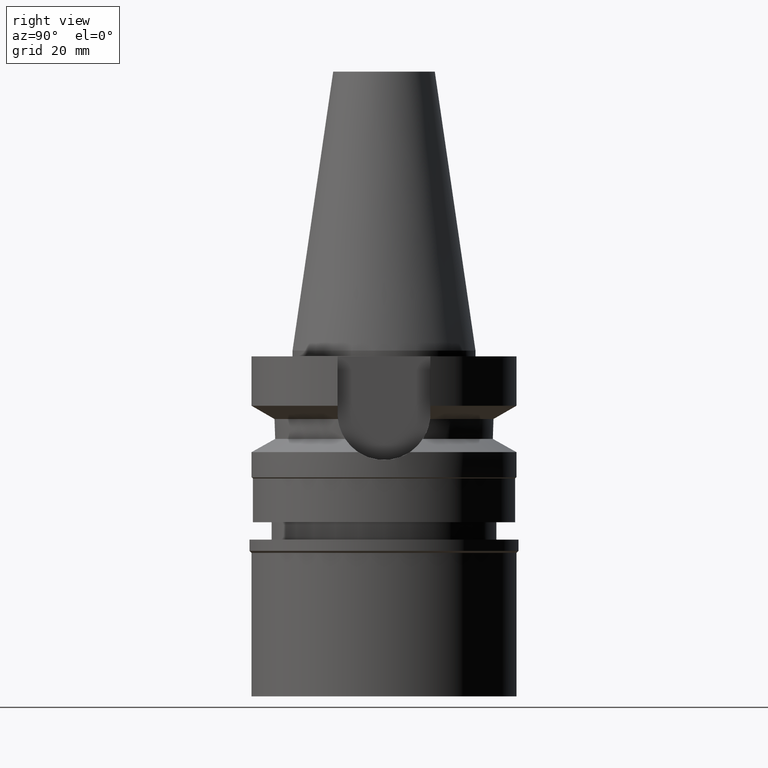
[diagram: clean part render]
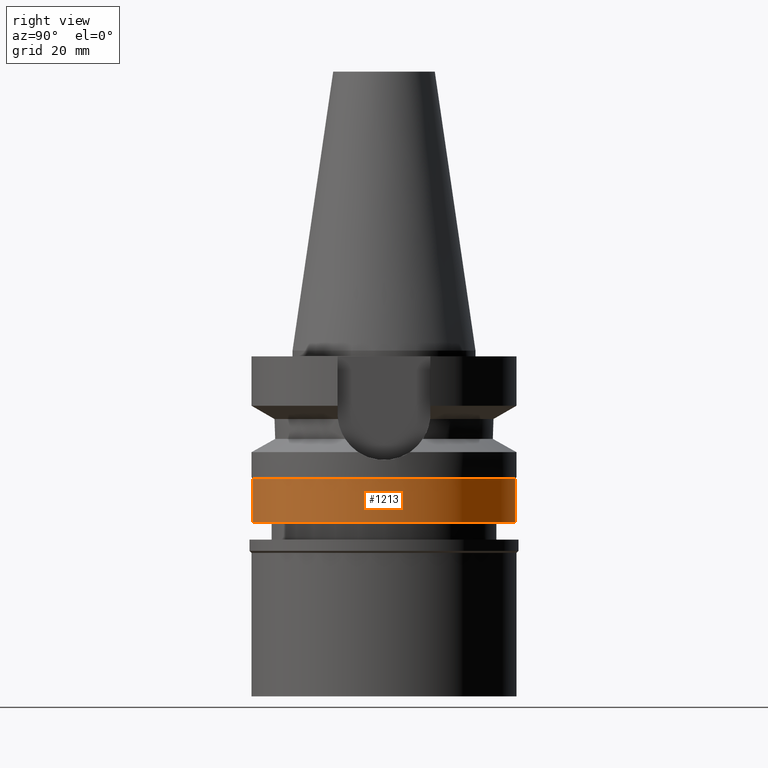
[diagram: same view with one face highlighted and labeled with its STEP entity id]
A machine part, right view. The second image highlights one B-rep face of the part: STEP entity #1213.
In plain terms, the highlighted cylindrical surface (partial cylindrical patch) has radius 22.75 mm, axis along (0, 0, -1).
Its self-contained STEP definition (entity closure, byte-faithful):
#2 = AXIS2_PLACEMENT_3D ( 'NONE', #907, #411, #1857 ) ;
#138 = AXIS2_PLACEMENT_3D ( 'NONE', #2080, #2734, #1775 ) ;
#178 = VERTEX_POINT ( 'NONE', #1004 ) ;
#200 = ORIENTED_EDGE ( 'NONE', *, *, #1917, .T. ) ;
#239 = CIRCLE ( 'NONE', #138, 22.75000000000000000 ) ;
#293 = CARTESIAN_POINT ( 'NONE',  ( 0.0000000000000000000, 22.75000000000000000, -22.19999999999999929 ) ) ;
#326 = VECTOR ( 'NONE', #1697, 1000.000000000000000 ) ;
#373 = VERTEX_POINT ( 'NONE', #1522 ) ;
#411 = DIRECTION ( 'NONE',  ( 0.0000000000000000000, 0.0000000000000000000, -1.000000000000000000 ) ) ;
#861 = ORIENTED_EDGE ( 'NONE', *, *, #1877, .F. ) ;
#907 = CARTESIAN_POINT ( 'NONE',  ( 0.0000000000000000000, 0.0000000000000000000, -22.19999999999999929 ) ) ;
#950 = EDGE_CURVE ( 'NONE', #373, #178, #239, .T. ) ;
#1004 = CARTESIAN_POINT ( 'NONE',  ( 0.0000000000000000000, 22.75000000000000000, -29.80000000000000071 ) ) ;
#1041 = CARTESIAN_POINT ( 'NONE',  ( 0.0000000000000000000, -22.75000000000000000, -22.19999999999999929 ) ) ;
#1184 = VERTEX_POINT ( 'NONE', #293 ) ;
#1213 = ADVANCED_FACE ( 'NONE', ( #1797 ), #1712, .T. ) ;
#1331 = CIRCLE ( 'NONE', #2, 22.75000000000000000 ) ;
#1385 = VECTOR ( 'NONE', #2694, 1000.000000000000000 ) ;
#1437 = EDGE_LOOP ( 'NONE', ( #200, #2031, #2131, #861 ) ) ;
#1488 = CARTESIAN_POINT ( 'NONE',  ( 0.0000000000000000000, 0.0000000000000000000, 53.26999999999999602 ) ) ;
#1490 = CARTESIAN_POINT ( 'NONE',  ( 0.0000000000000000000, 22.75000000000000000, -22.19999999999999929 ) ) ;
#1522 = CARTESIAN_POINT ( 'NONE',  ( 0.0000000000000000000, -22.75000000000000000, -29.80000000000000071 ) ) ;
#1697 = DIRECTION ( 'NONE',  ( 0.0000000000000000000, 0.0000000000000000000, -1.000000000000000000 ) ) ;
#1712 = CYLINDRICAL_SURFACE ( 'NONE', #2464, 22.75000000000000000 ) ;
#1775 = DIRECTION ( 'NONE',  ( 0.0000000000000000000, -1.000000000000000000, 0.0000000000000000000 ) ) ;
#1797 = FACE_OUTER_BOUND ( 'NONE', #1437, .T. ) ;
#1857 = DIRECTION ( 'NONE',  ( 0.0000000000000000000, 1.000000000000000000, 0.0000000000000000000 ) ) ;
#1877 = EDGE_CURVE ( 'NONE', #1184, #178, #2666, .T. ) ;
#1917 = EDGE_CURVE ( 'NONE', #1184, #2620, #1331, .T. ) ;
#2031 = ORIENTED_EDGE ( 'NONE', *, *, #2340, .T. ) ;
#2047 = CARTESIAN_POINT ( 'NONE',  ( 0.0000000000000000000, -22.75000000000000000, -22.19999999999999929 ) ) ;
#2080 = CARTESIAN_POINT ( 'NONE',  ( 0.0000000000000000000, 0.0000000000000000000, -29.80000000000000071 ) ) ;
#2131 = ORIENTED_EDGE ( 'NONE', *, *, #950, .T. ) ;
#2220 = LINE ( 'NONE', #1041, #326 ) ;
#2340 = EDGE_CURVE ( 'NONE', #2620, #373, #2220, .T. ) ;
#2464 = AXIS2_PLACEMENT_3D ( 'NONE', #1488, #2661, #2743 ) ;
#2620 = VERTEX_POINT ( 'NONE', #2047 ) ;
#2661 = DIRECTION ( 'NONE',  ( 0.0000000000000000000, 0.0000000000000000000, -1.000000000000000000 ) ) ;
#2666 = LINE ( 'NONE', #1490, #1385 ) ;
#2694 = DIRECTION ( 'NONE',  ( 0.0000000000000000000, 0.0000000000000000000, -1.000000000000000000 ) ) ;
#2734 = DIRECTION ( 'NONE',  ( 0.0000000000000000000, 0.0000000000000000000, 1.000000000000000000 ) ) ;
#2743 = DIRECTION ( 'NONE',  ( 0.0000000000000000000, -1.000000000000000000, 0.0000000000000000000 ) ) ;